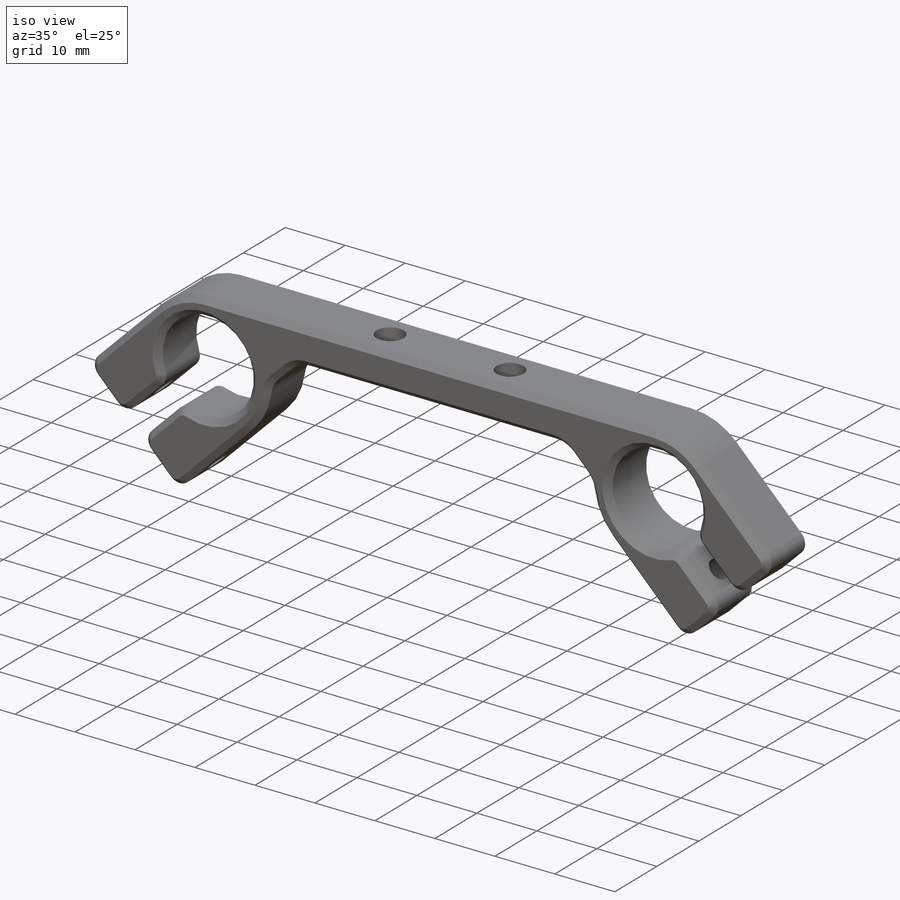
[diagram: iso view]
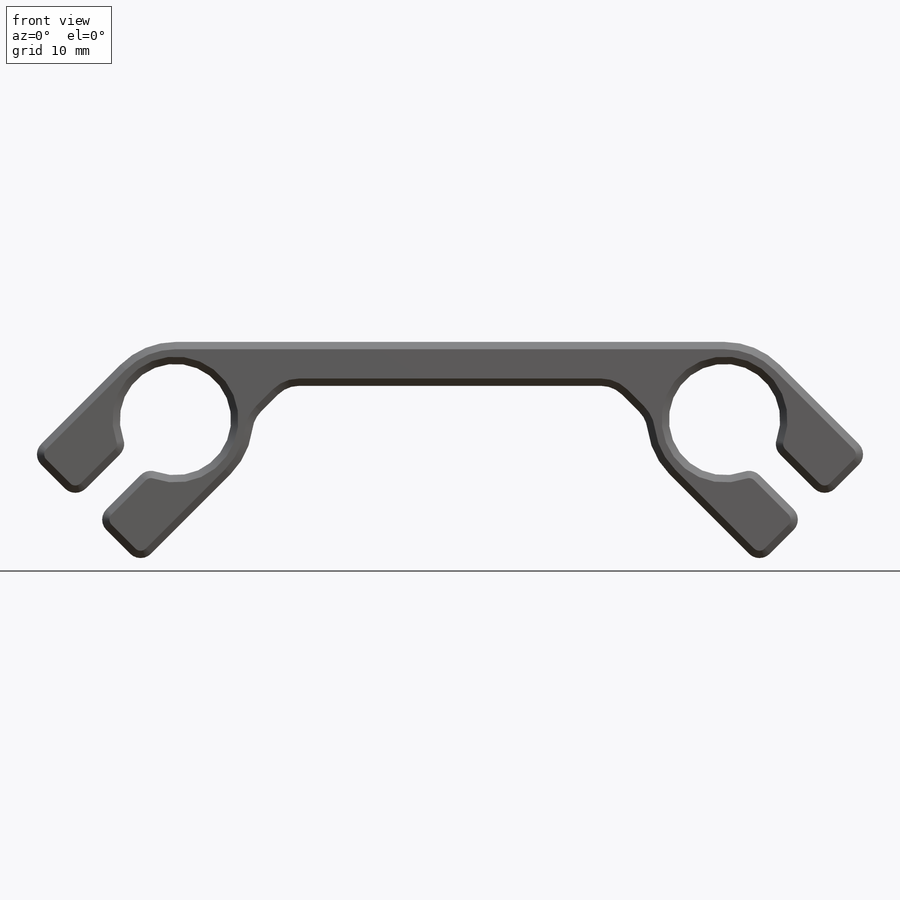
[diagram: front view]
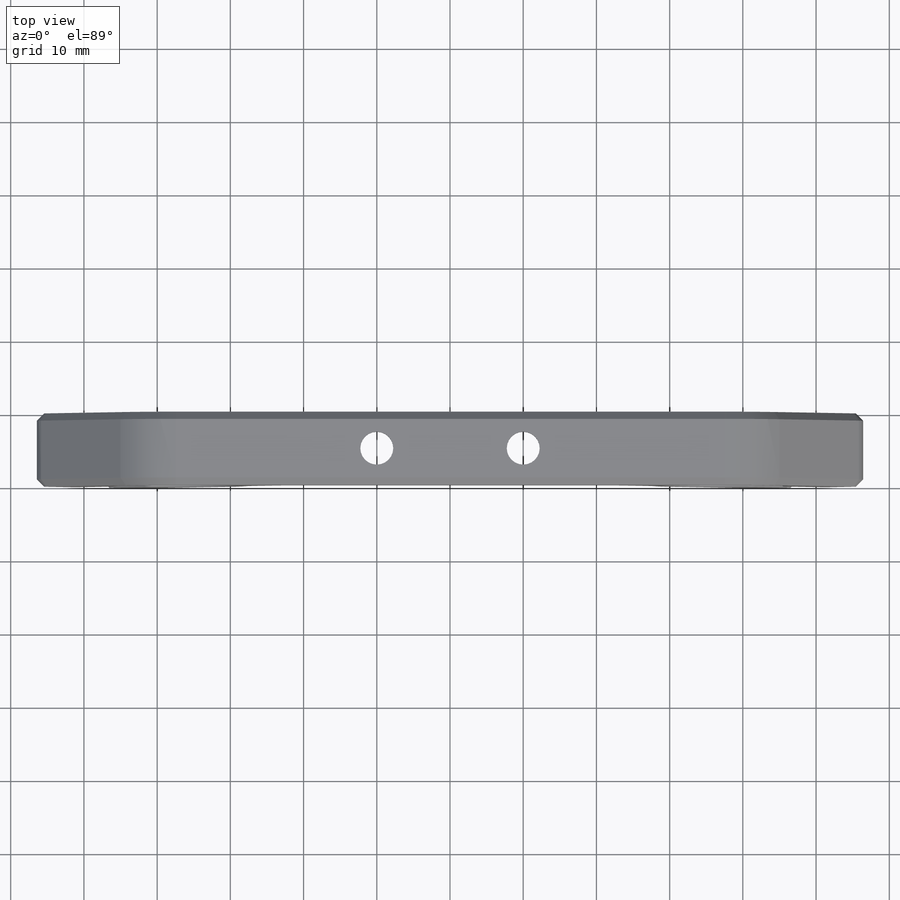
[diagram: top view]
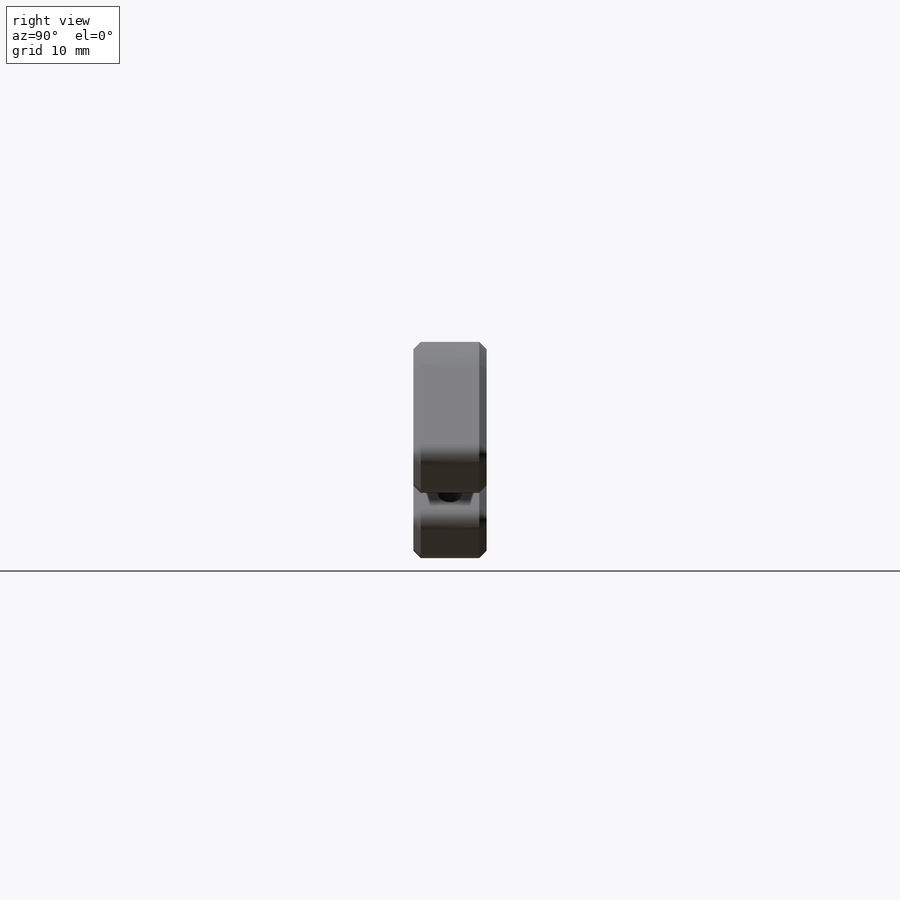
[diagram: right view]
SOLIDWORKS PART (.sldprt)
format: sldprt  version: not decoded by parser v0  size: 513,536 bytes
history: native  units: mm
features: sketch x10, plane x3, hole x3, thread x2, fillet x2, material x1, extrude x1, chamfer x1 (+8 scaffold rows collapsed)
feature tree (31):
  scaffold x8  (default folders/planes/origin — collapsed)
  material  "Сплав 2024"
  plane  "Спереди"
  plane  "Сверху"
  plane  "Справа"
  sketch  "Эскиз1"  dims[c1.D1=15.2mm c1.D2=15.2mm c2.D1=~21.052246mm c2.D3=~131.325278mm c2.D2=37.5mm c2.D4=~20.52562mm c2.D5=~28.535617mm c3.D4=~7.133904mm c3.D5=~13.391715mm c4.D4=~6.570701mm c4.D5=~12.751059mm c5.D4=37.3117mm c6.D4=45.0deg c6.D5=2.0mm c6.D6=10.0mm c6.D7=6.0mm c6.D8=~6.505382mm c6.D3=3.0mm]
  extrude  "Бобышка-Вытянуть1"  Depth=10mm
  sketch  "Эскиз2"  dims[D1=5.0mm]
  sketch  "Эскиз3"  dims[D1=5.0mm]
  hole  "Отверстие обработанное метчиком M4x0.71"  [1 undecoded]
  sketch  "Эскиз5"
  sketch  "Эскиз4"  dims[hole-wizard template sketch: 47 standard entries collapsed; hole parameters kept: c15.Глубина сверла=19.0mm c15.D3=~14.816244mm c15.Угол заточки сверла=118.0deg]
  thread  "Отверстие резьбы1"  Diameter=19mm  [1 undecoded]
  hole  "Отверстие обработанное метчиком M4x0.72"  [1 undecoded]
  sketch  "Эскиз7"
  sketch  "Эскиз6"  dims[hole-wizard template sketch: 47 standard entries collapsed; hole parameters kept: c15.Глубина сверла=19.0mm c15.D3=~14.816244mm c15.Угол заточки сверла=118.0deg]
  thread  "Отверстие резьбы2"  Diameter=19mm  [1 undecoded]
  fillet  "Скругление1"  Radius=2mm
  fillet  "Скругление2"  Radius=4mm
  chamfer  "Фаска1"  Distance=1mm Angle=45deg
  sketch  "Эскиз8"  dims[D1=20.0mm D2=10.0mm]
  hole  "Цековка для винта с внутренним шестигранником M41"  [1 undecoded]
  sketch  "Эскиз10"
  sketch  "Эскиз9"  dims[hole-wizard template sketch: 45 standard entries collapsed; hole parameters above]
decode coverage: 13 of 19 modeling features carry decoded parameters
note: ~ marks probable driven/reference dimensions
note: 5 parameter values undecoded
summary: no parameter record found for 3 features
note: suppression state not decoded; provenance and decode notes live in map.json
